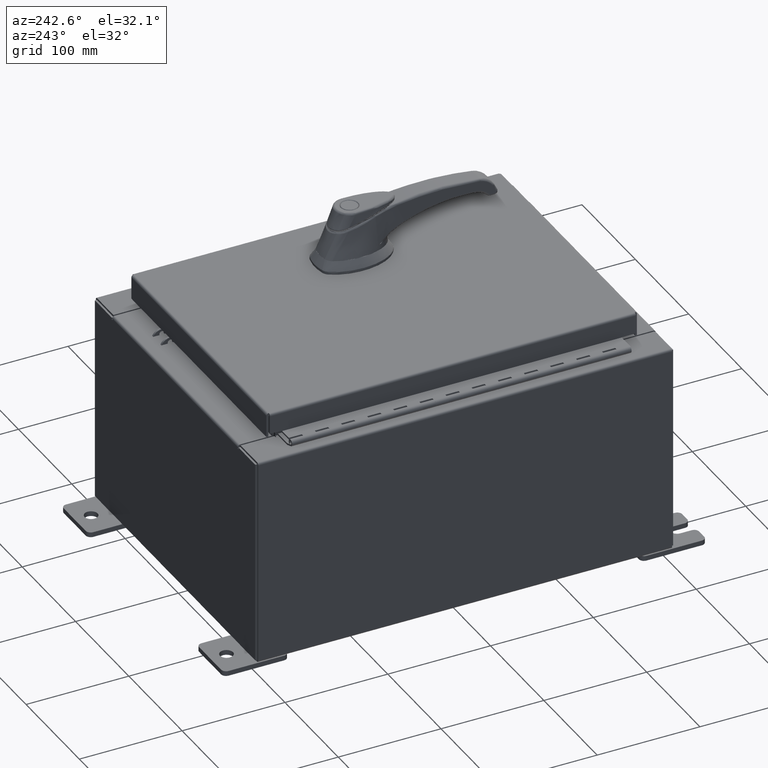
[diagram: clean part render]
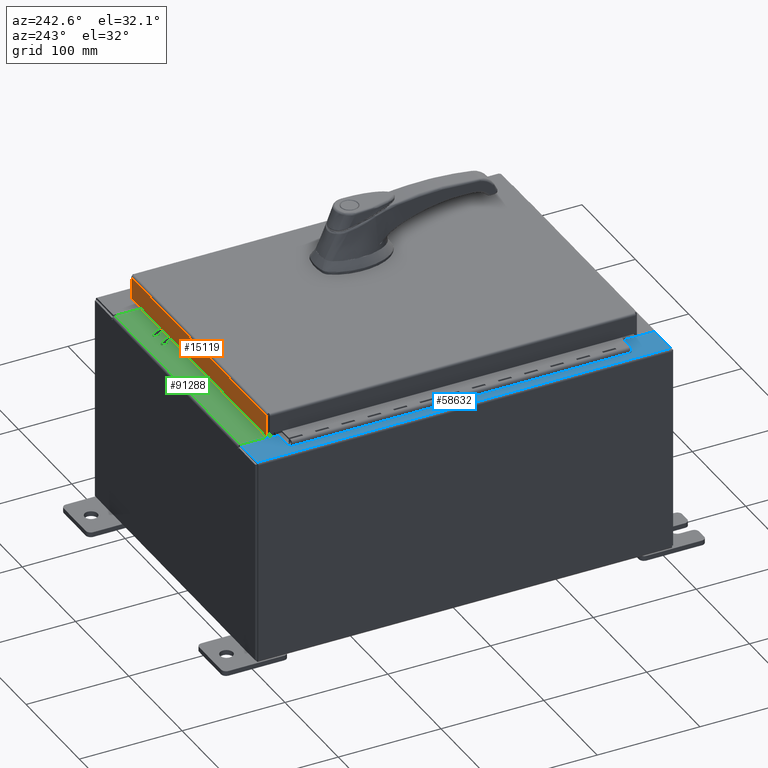
[diagram: same view with three faces highlighted in distinct colors, each labeled with its STEP entity id]
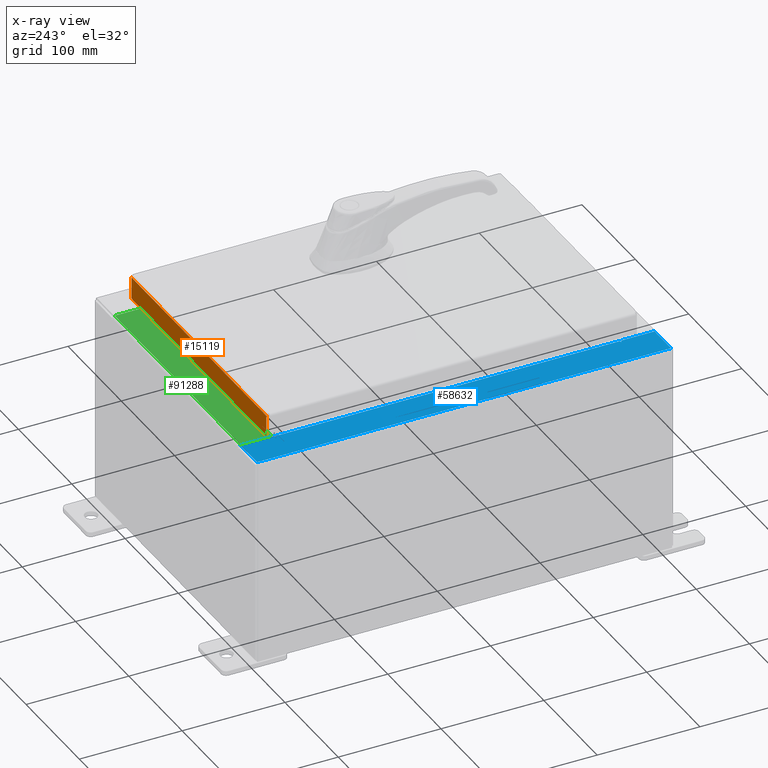
[diagram: x-ray of the same camera — body ghosted, the three highlighted faces saturated]
A machine part, auxiliary view with three faces highlighted in distinct colors.
The next image is the same camera in x-ray (body ghosted, the three faces saturated) — at least one of them is partly hidden behind the body in this view.
Their STEP definitions:

[orange] entity #15119 — the highlighted planar face has unit normal (0, -1, -0).
#3379 = CARTESIAN_POINT ( 'NONE',  ( -4.989157864376269700, 7.094000000000003900, -0.9377000000000010900 ) ) ;
#4052 = LINE ( 'NONE', #16053, #69313 ) ;
#7167 = DIRECTION ( 'NONE',  ( 0.0000000000000000000, 3.798629886902794000E-015, -1.000000000000000000 ) ) ;
#7818 = CARTESIAN_POINT ( 'NONE',  ( 4.989157864376268000, 7.094000000000000300, -0.08769999999999997200 ) ) ;
#8348 = LINE ( 'NONE', #13174, #30133 ) ;
#13174 = CARTESIAN_POINT ( 'NONE',  ( -4.989157864376269700, 7.094000000000000300, -0.07469999999999972500 ) ) ;
#15119 = ADVANCED_FACE ( 'NONE', ( #49499 ), #39735, .F. ) ;
#15479 = CARTESIAN_POINT ( 'NONE',  ( -4.989157864376269700, 7.094000000000000300, -0.08769999999999997200 ) ) ;
#16053 = CARTESIAN_POINT ( 'NONE',  ( -5.078000000000001200, 7.094000000000000300, -0.08769999999999997200 ) ) ;
#17260 = ORIENTED_EDGE ( 'NONE', *, *, #79587, .F. ) ;
#21435 = DIRECTION ( 'NONE',  ( -0.0000000000000000000, 3.798629886902794000E-015, -1.000000000000000000 ) ) ;
#21670 = EDGE_CURVE ( 'NONE', #94407, #88598, #4052, .T. ) ;
#23797 = CARTESIAN_POINT ( 'NONE',  ( 4.989157864376268000, 7.094000000000003900, -0.9376999999999997600 ) ) ;
#28148 = CARTESIAN_POINT ( 'NONE',  ( -5.078000000000001200, 7.094000000000003900, -0.9377000000000010900 ) ) ;
#29511 = EDGE_CURVE ( 'NONE', #83678, #75425, #101225, .T. ) ;
#30133 = VECTOR ( 'NONE', #21435, 39.37007874015748100 ) ;
#37127 = CARTESIAN_POINT ( 'NONE',  ( 4.989157864376268000, 7.094000000000000300, 2.720829407370000500E-014 ) ) ;
#38590 = VECTOR ( 'NONE', #68875, 39.37007874015748100 ) ;
#39735 = PLANE ( 'NONE',  #51526 ) ;
#41075 = DIRECTION ( 'NONE',  ( -1.000000000000000000, -4.598046224737915900E-031, -1.763806220535520100E-045 ) ) ;
#47925 = CARTESIAN_POINT ( 'NONE',  ( -3.261853991829077700E-030, 7.094000000000000300, 2.720829407370000500E-014 ) ) ;
#49499 = FACE_OUTER_BOUND ( 'NONE', #49660, .T. ) ;
#49660 = EDGE_LOOP ( 'NONE', ( #79087, #99521, #96624, #17260 ) ) ;
#51526 = AXIS2_PLACEMENT_3D ( 'NONE', #47925, #56164, #7167 ) ;
#55743 = VECTOR ( 'NONE', #102501, 39.37007874015748100 ) ;
#56164 = DIRECTION ( 'NONE',  ( 4.598046224737915900E-031, -1.000000000000000000, -3.798629886902794000E-015 ) ) ;
#56575 = EDGE_CURVE ( 'NONE', #94407, #75425, #99157, .T. ) ;
#68875 = DIRECTION ( 'NONE',  ( 1.000000000000000000, -0.0000000000000000000, 1.210448599004449200E-016 ) ) ;
#69313 = VECTOR ( 'NONE', #41075, 39.37007874015748100 ) ;
#75425 = VERTEX_POINT ( 'NONE', #23797 ) ;
#79087 = ORIENTED_EDGE ( 'NONE', *, *, #21670, .F. ) ;
#79587 = EDGE_CURVE ( 'NONE', #88598, #83678, #8348, .T. ) ;
#83678 = VERTEX_POINT ( 'NONE', #3379 ) ;
#88598 = VERTEX_POINT ( 'NONE', #15479 ) ;
#94407 = VERTEX_POINT ( 'NONE', #7818 ) ;
#96624 = ORIENTED_EDGE ( 'NONE', *, *, #29511, .F. ) ;
#99157 = LINE ( 'NONE', #37127, #55743 ) ;
#99521 = ORIENTED_EDGE ( 'NONE', *, *, #56575, .T. ) ;
#101225 = LINE ( 'NONE', #28148, #38590 ) ;
#102501 = DIRECTION ( 'NONE',  ( 0.0000000000000000000, 3.798629886902794000E-015, -1.000000000000000000 ) ) ;

[blue] entity #58632 — the highlighted planar face has unit normal (0, 0, -1).
#607 = EDGE_CURVE ( 'NONE', #80453, #18286, #62483, .T. ) ;
#733 = LINE ( 'NONE', #66228, #66020 ) ;
#796 = DIRECTION ( 'NONE',  ( 7.132762385546378400E-015, 0.0000000000000000000, -1.000000000000000000 ) ) ;
#1493 = VECTOR ( 'NONE', #59705, 39.37007874015748100 ) ;
#2059 = EDGE_LOOP ( 'NONE', ( #99418, #65871, #65562, #101801, #84536, #42324, #60353, #37878, #5931, #11819, #71626, #105712 ) ) ;
#3974 = EDGE_CURVE ( 'NONE', #63540, #32052, #27601, .T. ) ;
#5057 = CARTESIAN_POINT ( 'NONE',  ( -4.712700000000030100, -6.593749999999999100, 7.925300000000008900 ) ) ;
#5207 = CARTESIAN_POINT ( 'NONE',  ( -5.679009539018259300E-014, -7.925300000000000000, 7.925300000000042600 ) ) ;
#5931 = ORIENTED_EDGE ( 'NONE', *, *, #50328, .F. ) ;
#6288 = VERTEX_POINT ( 'NONE', #51287 ) ;
#6983 = CARTESIAN_POINT ( 'NONE',  ( -4.750050000000030100, 6.631099999999998200, 7.925300000000008900 ) ) ;
#7765 = EDGE_CURVE ( 'NONE', #11035, #63540, #87295, .T. ) ;
#8412 = AXIS2_PLACEMENT_3D ( 'NONE', #11770, #68976, #20022 ) ;
#9008 = DIRECTION ( 'NONE',  ( 0.0000000000000000000, 1.000000000000000000, 0.0000000000000000000 ) ) ;
#10912 = LINE ( 'NONE', #5057, #95346 ) ;
#10916 = CIRCLE ( 'NONE', #97153, 0.01867500000000003900 ) ;
#11035 = VERTEX_POINT ( 'NONE', #33314 ) ;
#11770 = CARTESIAN_POINT ( 'NONE',  ( -4.750050000000030100, 6.612424999999998200, 7.925300000000008900 ) ) ;
#11819 = ORIENTED_EDGE ( 'NONE', *, *, #94236, .F. ) ;
#12784 = VERTEX_POINT ( 'NONE', #78108 ) ;
#13555 = CARTESIAN_POINT ( 'NONE',  ( -4.750050000000030100, 6.593749999999999100, 7.925300000000008900 ) ) ;
#14078 = VERTEX_POINT ( 'NONE', #101426 ) ;
#18286 = VERTEX_POINT ( 'NONE', #13555 ) ;
#20022 = DIRECTION ( 'NONE',  ( 1.000000000000000000, 0.0000000000000000000, 0.0000000000000000000 ) ) ;
#21113 = DIRECTION ( 'NONE',  ( 1.000000000000000000, 0.0000000000000000000, 0.0000000000000000000 ) ) ;
#21384 = EDGE_CURVE ( 'NONE', #70678, #32052, #103873, .T. ) ;
#23020 = DIRECTION ( 'NONE',  ( -1.000000000000000000, 0.0000000000000000000, -7.132762385546378400E-015 ) ) ;
#23760 = LINE ( 'NONE', #80006, #67204 ) ;
#27601 = LINE ( 'NONE', #56807, #95391 ) ;
#31497 = AXIS2_PLACEMENT_3D ( 'NONE', #98751, #796, #58023 ) ;
#31698 = VERTEX_POINT ( 'NONE', #101528 ) ;
#31771 = CARTESIAN_POINT ( 'NONE',  ( -4.750050000000030100, -6.612424999999998200, 7.925300000000008900 ) ) ;
#32052 = VERTEX_POINT ( 'NONE', #43190 ) ;
#32147 = DIRECTION ( 'NONE',  ( 0.0000000000000000000, 1.000000000000000000, 0.0000000000000000000 ) ) ;
#33013 = PLANE ( 'NONE',  #31497 ) ;
#33266 = CARTESIAN_POINT ( 'NONE',  ( -4.750050000000030100, -6.593749999999999100, 7.925300000000008900 ) ) ;
#33314 = CARTESIAN_POINT ( 'NONE',  ( -5.912300000000028500, -7.925300000000000000, 7.925300000000000000 ) ) ;
#35027 = CARTESIAN_POINT ( 'NONE',  ( -4.750050000000030100, -6.631099999999999100, 7.925300000000008900 ) ) ;
#36256 = EDGE_CURVE ( 'NONE', #31698, #42094, #105745, .T. ) ;
#37878 = ORIENTED_EDGE ( 'NONE', *, *, #100751, .F. ) ;
#38392 = EDGE_CURVE ( 'NONE', #18286, #6288, #23760, .T. ) ;
#39282 = DIRECTION ( 'NONE',  ( 1.000000000000000000, 0.0000000000000000000, 0.0000000000000000000 ) ) ;
#39989 = DIRECTION ( 'NONE',  ( 1.000000000000000000, 0.0000000000000000000, 0.0000000000000000000 ) ) ;
#40815 = VECTOR ( 'NONE', #74809, 39.37007874015748100 ) ;
#42094 = VERTEX_POINT ( 'NONE', #96873 ) ;
#42324 = ORIENTED_EDGE ( 'NONE', *, *, #3974, .T. ) ;
#43190 = CARTESIAN_POINT ( 'NONE',  ( -4.699700000000029300, -6.631099999999999100, 7.925300000000008900 ) ) ;
#43274 = CARTESIAN_POINT ( 'NONE',  ( -5.912300000000028500, 7.925299999999998200, 7.925300000000000000 ) ) ;
#45020 = LINE ( 'NONE', #43274, #1493 ) ;
#46840 = DIRECTION ( 'NONE',  ( -0.0000000000000000000, -1.000000000000000000, -0.0000000000000000000 ) ) ;
#49451 = EDGE_CURVE ( 'NONE', #14078, #31698, #733, .T. ) ;
#50328 = EDGE_CURVE ( 'NONE', #12784, #78907, #10912, .T. ) ;
#51287 = CARTESIAN_POINT ( 'NONE',  ( -4.712700000000030100, 6.593749999999999100, 7.925300000000008900 ) ) ;
#56807 = CARTESIAN_POINT ( 'NONE',  ( -4.699700000000029300, 0.0000000000000000000, 7.925300000000008900 ) ) ;
#57486 = VECTOR ( 'NONE', #46840, 39.37007874015748100 ) ;
#58023 = DIRECTION ( 'NONE',  ( -1.000000000000000000, 0.0000000000000000000, -7.132762385546378400E-015 ) ) ;
#58632 = ADVANCED_FACE ( 'NONE', ( #65914 ), #33013, .F. ) ;
#59705 = DIRECTION ( 'NONE',  ( -0.0000000000000000000, 1.000000000000000000, -0.0000000000000000000 ) ) ;
#60353 = ORIENTED_EDGE ( 'NONE', *, *, #21384, .F. ) ;
#62203 = CARTESIAN_POINT ( 'NONE',  ( -4.750050000000030100, -6.631099999999999100, 7.925300000000008900 ) ) ;
#62483 = CIRCLE ( 'NONE', #8412, 0.01867500000000003900 ) ;
#62555 = LINE ( 'NONE', #74462, #40815 ) ;
#63540 = VERTEX_POINT ( 'NONE', #79410 ) ;
#65562 = ORIENTED_EDGE ( 'NONE', *, *, #36256, .T. ) ;
#65576 = VECTOR ( 'NONE', #70597, 39.37007874015748100 ) ;
#65871 = ORIENTED_EDGE ( 'NONE', *, *, #49451, .T. ) ;
#65914 = FACE_OUTER_BOUND ( 'NONE', #2059, .T. ) ;
#66020 = VECTOR ( 'NONE', #9008, 39.37007874015748100 ) ;
#66228 = CARTESIAN_POINT ( 'NONE',  ( -4.699700000000029300, 0.0000000000000000000, 7.925300000000008900 ) ) ;
#67204 = VECTOR ( 'NONE', #39282, 39.37007874015748100 ) ;
#68976 = DIRECTION ( 'NONE',  ( -7.132762385546378400E-015, -0.0000000000000000000, 1.000000000000000000 ) ) ;
#70597 = DIRECTION ( 'NONE',  ( 1.000000000000000000, -0.0000000000000000000, 7.132762385546378400E-015 ) ) ;
#70678 = VERTEX_POINT ( 'NONE', #35027 ) ;
#71087 = CARTESIAN_POINT ( 'NONE',  ( -4.712700000000030100, 6.593749999999999100, 7.925300000000008900 ) ) ;
#71626 = ORIENTED_EDGE ( 'NONE', *, *, #38392, .F. ) ;
#73456 = EDGE_CURVE ( 'NONE', #14078, #80453, #62555, .T. ) ;
#74462 = CARTESIAN_POINT ( 'NONE',  ( -4.699700000000029300, 6.631099999999999100, 7.925300000000008900 ) ) ;
#74809 = DIRECTION ( 'NONE',  ( -1.000000000000000000, 0.0000000000000000000, 0.0000000000000000000 ) ) ;
#78108 = CARTESIAN_POINT ( 'NONE',  ( -4.712700000000030100, -6.593749999999999100, 7.925300000000008900 ) ) ;
#78907 = VERTEX_POINT ( 'NONE', #33266 ) ;
#79410 = CARTESIAN_POINT ( 'NONE',  ( -4.699700000000029300, -7.925300000000000000, 7.925300000000008900 ) ) ;
#80006 = CARTESIAN_POINT ( 'NONE',  ( -4.750050000000030100, 6.593749999999999100, 7.925300000000008900 ) ) ;
#80134 = CARTESIAN_POINT ( 'NONE',  ( -5.679009539018259300E-014, 7.925299999999998200, 7.925300000000042600 ) ) ;
#80453 = VERTEX_POINT ( 'NONE', #6983 ) ;
#81776 = LINE ( 'NONE', #71087, #57486 ) ;
#84008 = VECTOR ( 'NONE', #23020, 39.37007874015748100 ) ;
#84536 = ORIENTED_EDGE ( 'NONE', *, *, #7765, .T. ) ;
#85439 = EDGE_CURVE ( 'NONE', #11035, #42094, #45020, .T. ) ;
#87295 = LINE ( 'NONE', #5207, #65576 ) ;
#88914 = DIRECTION ( 'NONE',  ( -7.132762385546378400E-015, -0.0000000000000000000, 1.000000000000000000 ) ) ;
#94236 = EDGE_CURVE ( 'NONE', #6288, #12784, #81776, .T. ) ;
#95346 = VECTOR ( 'NONE', #103339, 39.37007874015748100 ) ;
#95391 = VECTOR ( 'NONE', #32147, 39.37007874015748100 ) ;
#96873 = CARTESIAN_POINT ( 'NONE',  ( -5.912300000000028500, 7.925299999999998200, 7.925300000000000000 ) ) ;
#97153 = AXIS2_PLACEMENT_3D ( 'NONE', #31771, #88914, #39989 ) ;
#98730 = VECTOR ( 'NONE', #21113, 39.37007874015748100 ) ;
#98751 = CARTESIAN_POINT ( 'NONE',  ( -5.679009539018259300E-014, 0.0000000000000000000, 7.925300000000042600 ) ) ;
#99418 = ORIENTED_EDGE ( 'NONE', *, *, #73456, .F. ) ;
#100751 = EDGE_CURVE ( 'NONE', #78907, #70678, #10916, .T. ) ;
#101426 = CARTESIAN_POINT ( 'NONE',  ( -4.699700000000029300, 6.631099999999999100, 7.925300000000008900 ) ) ;
#101528 = CARTESIAN_POINT ( 'NONE',  ( -4.699700000000029300, 7.925299999999998200, 7.925300000000008900 ) ) ;
#101801 = ORIENTED_EDGE ( 'NONE', *, *, #85439, .F. ) ;
#103339 = DIRECTION ( 'NONE',  ( -1.000000000000000000, 0.0000000000000000000, 0.0000000000000000000 ) ) ;
#103873 = LINE ( 'NONE', #62203, #98730 ) ;
#105712 = ORIENTED_EDGE ( 'NONE', *, *, #607, .F. ) ;
#105745 = LINE ( 'NONE', #80134, #84008 ) ;

[green] entity #91288 — the highlighted planar face has unit normal (0, 0, 1).
#870 = VERTEX_POINT ( 'NONE', #81761 ) ;
#8149 = EDGE_CURVE ( 'NONE', #54780, #53903, #47635, .T. ) ;
#11446 = ORIENTED_EDGE ( 'NONE', *, *, #8149, .T. ) ;
#15372 = EDGE_LOOP ( 'NONE', ( #15705, #66157, #75342, #11446 ) ) ;
#15705 = ORIENTED_EDGE ( 'NONE', *, *, #101756, .F. ) ;
#17010 = EDGE_CURVE ( 'NONE', #54780, #21954, #63381, .T. ) ;
#21954 = VERTEX_POINT ( 'NONE', #53516 ) ;
#22888 = CARTESIAN_POINT ( 'NONE',  ( 4.637200000000002700, -1.300299999999999800, 4.000000000000003600 ) ) ;
#24071 = VECTOR ( 'NONE', #62855, 39.37007874015748100 ) ;
#30330 = CARTESIAN_POINT ( 'NONE',  ( 4.637200000000002700, -1.287299999999999900, 4.000000000000003600 ) ) ;
#36069 = CARTESIAN_POINT ( 'NONE',  ( -4.637199999999998200, -0.07469999999999973900, 3.999999999999999600 ) ) ;
#36707 = FACE_OUTER_BOUND ( 'NONE', #15372, .T. ) ;
#45043 = DIRECTION ( 'NONE',  ( 0.0000000000000000000, 3.566381192773190000E-015, 1.000000000000000000 ) ) ;
#45906 = EDGE_CURVE ( 'NONE', #21954, #870, #67532, .T. ) ;
#47635 = LINE ( 'NONE', #101627, #91038 ) ;
#52709 = DIRECTION ( 'NONE',  ( -1.000000000000000000, 0.0000000000000000000, 0.0000000000000000000 ) ) ;
#53516 = CARTESIAN_POINT ( 'NONE',  ( 4.637200000000002700, -1.287299999999999900, 4.000000000000003600 ) ) ;
#53903 = VERTEX_POINT ( 'NONE', #102021 ) ;
#54780 = VERTEX_POINT ( 'NONE', #75866 ) ;
#57745 = AXIS2_PLACEMENT_3D ( 'NONE', #93609, #45043, #102196 ) ;
#62855 = DIRECTION ( 'NONE',  ( -1.000000000000000000, 0.0000000000000000000, 0.0000000000000000000 ) ) ;
#63381 = LINE ( 'NONE', #22888, #104249 ) ;
#66157 = ORIENTED_EDGE ( 'NONE', *, *, #45906, .F. ) ;
#67532 = LINE ( 'NONE', #30330, #24071 ) ;
#75342 = ORIENTED_EDGE ( 'NONE', *, *, #17010, .F. ) ;
#75866 = CARTESIAN_POINT ( 'NONE',  ( 4.637200000000002700, -0.08769999999999993100, 3.999999999999999600 ) ) ;
#77537 = PLANE ( 'NONE',  #57745 ) ;
#80010 = DIRECTION ( 'NONE',  ( -0.0000000000000000000, -1.000000000000000000, 3.566381192773190000E-015 ) ) ;
#81761 = CARTESIAN_POINT ( 'NONE',  ( -4.637199999999998200, -1.287299999999999200, 4.000000000000003600 ) ) ;
#84980 = DIRECTION ( 'NONE',  ( -0.0000000000000000000, 1.000000000000000000, -3.566381192773190000E-015 ) ) ;
#91038 = VECTOR ( 'NONE', #52709, 39.37007874015748100 ) ;
#91288 = ADVANCED_FACE ( 'NONE', ( #36707 ), #77537, .T. ) ;
#93609 = CARTESIAN_POINT ( 'NONE',  ( 0.0000000000000000000, 1.425992975200418200E-014, 3.999999999999999600 ) ) ;
#100350 = LINE ( 'NONE', #36069, #105463 ) ;
#101627 = CARTESIAN_POINT ( 'NONE',  ( 0.0000000000000000000, -0.08770000000000026400, 4.000000000000000000 ) ) ;
#101756 = EDGE_CURVE ( 'NONE', #870, #53903, #100350, .T. ) ;
#102021 = CARTESIAN_POINT ( 'NONE',  ( -4.637199999999998200, -0.08770000000000026400, 3.999999999999999600 ) ) ;
#102196 = DIRECTION ( 'NONE',  ( 0.0000000000000000000, -1.000000000000000000, 3.566381192773190000E-015 ) ) ;
#104249 = VECTOR ( 'NONE', #80010, 39.37007874015748100 ) ;
#105463 = VECTOR ( 'NONE', #84980, 39.37007874015748100 ) ;